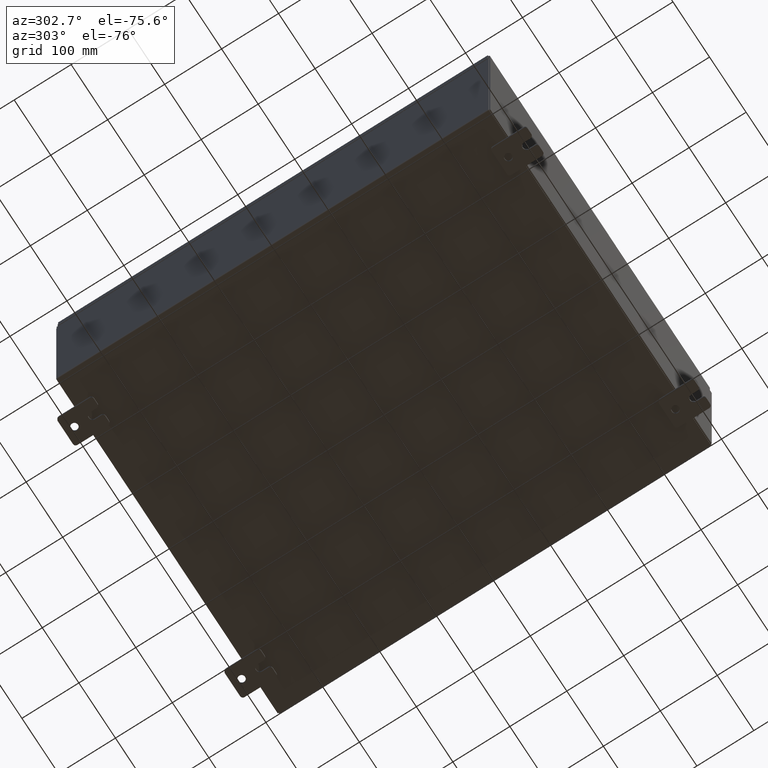
[diagram: clean part render]
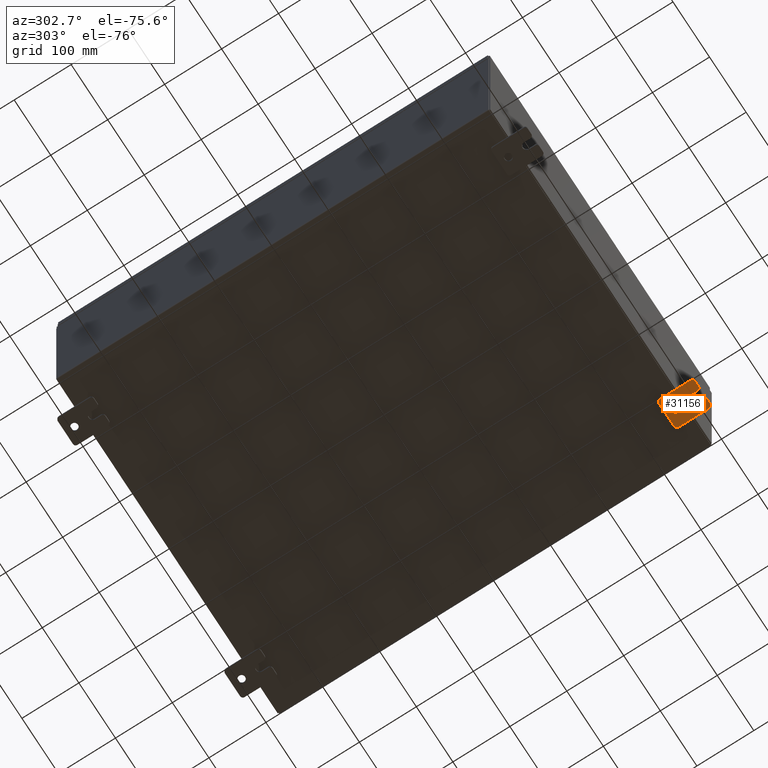
[diagram: same view with one face highlighted and labeled with its STEP entity id]
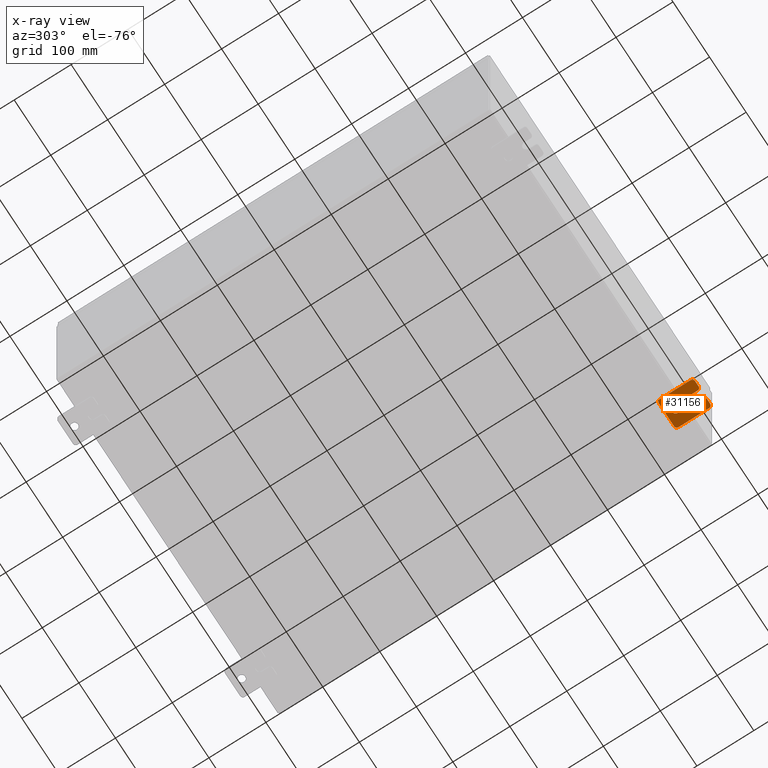
[diagram: x-ray of the same camera — body ghosted, the highlighted face saturated]
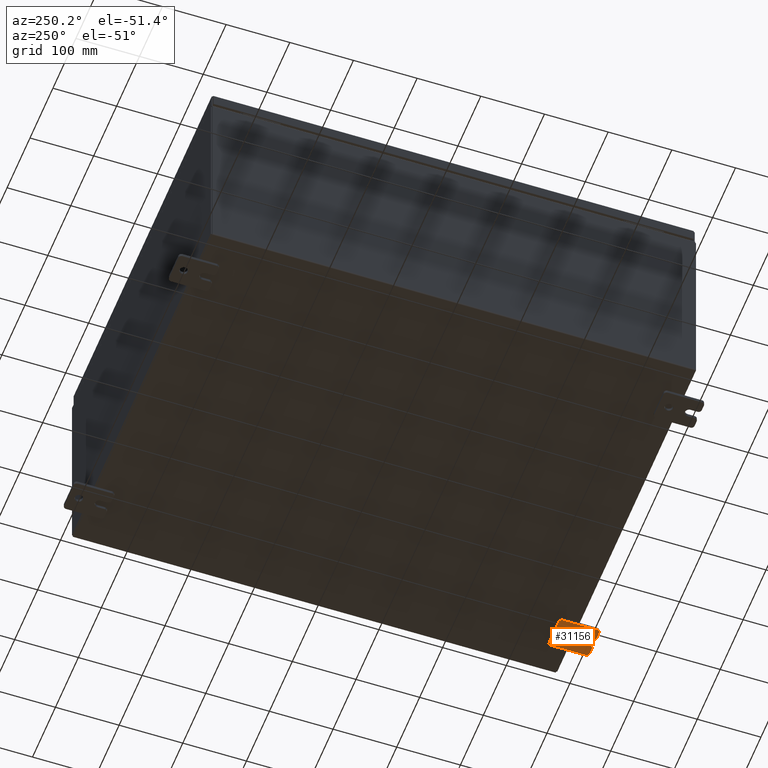
[diagram: same view with one face highlighted and labeled with its STEP entity id]
A machine part, auxiliary view. The second image highlights one B-rep face of the part: STEP entity #31156.
The next image is the same camera in x-ray: the body ghosted, the highlighted face saturated — about 0% of this face is hidden behind the body in this view.
A second angle (auxiliary view) of the same face is appended — the face is thin or edge-on in the first view.
In plain terms, the highlighted planar face has unit normal (0, 0, 1).
Its self-contained STEP definition (entity closure, byte-faithful):
#796 = DIRECTION ( 'NONE',  ( -1.000000000000000000, -0.0000000000000000000, 0.0000000000000000000 ) ) ;
#2778 = CARTESIAN_POINT ( 'NONE',  ( -0.1880000000000010000, 0.6249999999999992200, -0.2499999999999999200 ) ) ;
#4116 = CARTESIAN_POINT ( 'NONE',  ( -0.1880000000000001900, -0.6249999999999992200, -0.2499999999999993900 ) ) ;
#5035 = AXIS2_PLACEMENT_3D ( 'NONE', #34888, #5122, #39874 ) ;
#5122 = DIRECTION ( 'NONE',  ( 1.000000000000000000, 0.0000000000000000000, -0.0000000000000000000 ) ) ;
#5247 = DIRECTION ( 'NONE',  ( -1.000000000000000000, 6.523827964459549700E-016, 5.163192708025532000E-017 ) ) ;
#5863 = EDGE_CURVE ( 'NONE', #24296, #13994, #9798, .T. ) ;
#5956 = EDGE_CURVE ( 'NONE', #61265, #29517, #56196, .T. ) ;
#5964 = ORIENTED_EDGE ( 'NONE', *, *, #50212, .F. ) ;
#6340 = CARTESIAN_POINT ( 'NONE',  ( -0.1879999999999997800, -1.250000000000005600, -1.000000000000006200 ) ) ;
#6374 = CARTESIAN_POINT ( 'NONE',  ( -0.1880000000000010000, 0.6249999999999992200, 0.2499999999999999200 ) ) ;
#6983 = ORIENTED_EDGE ( 'NONE', *, *, #38902, .F. ) ;
#7082 = DIRECTION ( 'NONE',  ( 1.000000000000000000, -0.0000000000000000000, -5.163192708025532000E-017 ) ) ;
#7165 = CARTESIAN_POINT ( 'NONE',  ( -0.1880000000000004700, -1.060000000000002100, 0.2500000000000005000 ) ) ;
#7251 = VECTOR ( 'NONE', #30385, 39.37007874015748100 ) ;
#7382 = AXIS2_PLACEMENT_3D ( 'NONE', #35017, #5247, #39989 ) ;
#8220 = AXIS2_PLACEMENT_3D ( 'NONE', #30566, #796, #35579 ) ;
#8955 = EDGE_CURVE ( 'NONE', #63629, #29517, #38260, .T. ) ;
#9163 = AXIS2_PLACEMENT_3D ( 'NONE', #22955, #57531, #27926 ) ;
#9584 = LINE ( 'NONE', #4116, #60685 ) ;
#9798 = CIRCLE ( 'NONE', #36568, 0.1900000000000011100 ) ;
#10152 = CIRCLE ( 'NONE', #8220, 0.1900000000000011400 ) ;
#12065 = DIRECTION ( 'NONE',  ( 6.556435184794182400E-016, 1.000000000000000000, 0.0000000000000000000 ) ) ;
#12637 = VERTEX_POINT ( 'NONE', #13961 ) ;
#12710 = CARTESIAN_POINT ( 'NONE',  ( -0.1879999999999997800, -1.060000000000004100, -0.8100000000000050500 ) ) ;
#13435 = VECTOR ( 'NONE', #35865, 39.37007874015748100 ) ;
#13961 = CARTESIAN_POINT ( 'NONE',  ( -0.1880000000000001900, -0.6249999999999992200, 0.2500000000000005000 ) ) ;
#13994 = VERTEX_POINT ( 'NONE', #27525 ) ;
#14134 = AXIS2_PLACEMENT_3D ( 'NONE', #36809, #7082, #41786 ) ;
#14372 = EDGE_LOOP ( 'NONE', ( #22746, #22334, #21814, #42608, #52558, #22183, #6983, #21831, #29152, #23228, #45931, #5964, #38667, #57399 ) ) ;
#14698 = EDGE_CURVE ( 'NONE', #34138, #26171, #26755, .T. ) ;
#15420 = CARTESIAN_POINT ( 'NONE',  ( -0.1879999999999997800, 1.249999999999997300, 0.8099999999999935000 ) ) ;
#15505 = LINE ( 'NONE', #6340, #53449 ) ;
#16091 = VECTOR ( 'NONE', #12065, 39.37007874015748100 ) ;
#16392 = EDGE_CURVE ( 'NONE', #54589, #20120, #17795, .T. ) ;
#17445 = CARTESIAN_POINT ( 'NONE',  ( -0.1879999999999997800, -1.060000000000001200, 0.9999999999999988900 ) ) ;
#17639 = EDGE_CURVE ( 'NONE', #54589, #13994, #37185, .T. ) ;
#17795 = CIRCLE ( 'NONE', #9163, 0.1900000000000011100 ) ;
#18883 = LINE ( 'NONE', #25368, #7251 ) ;
#20120 = VERTEX_POINT ( 'NONE', #25864 ) ;
#20486 = VERTEX_POINT ( 'NONE', #23020 ) ;
#21814 = ORIENTED_EDGE ( 'NONE', *, *, #8955, .F. ) ;
#21831 = ORIENTED_EDGE ( 'NONE', *, *, #5863, .T. ) ;
#22183 = ORIENTED_EDGE ( 'NONE', *, *, #40440, .T. ) ;
#22281 = AXIS2_PLACEMENT_3D ( 'NONE', #52663, #22997, #57572 ) ;
#22334 = ORIENTED_EDGE ( 'NONE', *, *, #5956, .T. ) ;
#22619 = CARTESIAN_POINT ( 'NONE',  ( -0.1879999999999997800, 1.249999999999994200, -1.000000000000010400 ) ) ;
#22727 = ORIENTED_EDGE ( 'NONE', *, *, #14698, .T. ) ;
#22746 = ORIENTED_EDGE ( 'NONE', *, *, #26810, .F. ) ;
#22955 = CARTESIAN_POINT ( 'NONE',  ( -0.1879999999999997800, -1.060000000000003400, -0.4400000000000005000 ) ) ;
#22997 = DIRECTION ( 'NONE',  ( -1.000000000000000000, -0.0000000000000000000, 0.0000000000000000000 ) ) ;
#23020 = CARTESIAN_POINT ( 'NONE',  ( -0.1879999999999997800, 1.059999999999993400, -1.000000000000010000 ) ) ;
#23221 = CARTESIAN_POINT ( 'NONE',  ( -0.1879999999999997800, -1.060000000000001600, 0.8099999999999978300 ) ) ;
#23228 = ORIENTED_EDGE ( 'NONE', *, *, #16392, .T. ) ;
#24296 = VERTEX_POINT ( 'NONE', #24952 ) ;
#24382 = DIRECTION ( 'NONE',  ( -1.000000000000000000, -0.0000000000000000000, 0.0000000000000000000 ) ) ;
#24890 = PLANE ( 'NONE',  #5035 ) ;
#24952 = CARTESIAN_POINT ( 'NONE',  ( -0.1879999999999997800, -1.060000000000004500, -1.000000000000006400 ) ) ;
#25368 = CARTESIAN_POINT ( 'NONE',  ( -0.1879999999999997800, -1.250000000000002200, 0.9999999999999992200 ) ) ;
#25864 = CARTESIAN_POINT ( 'NONE',  ( -0.1880000000000004700, -1.060000000000003400, -0.2499999999999994400 ) ) ;
#26153 = DIRECTION ( 'NONE',  ( 1.000000000000000000, -0.0000000000000000000, -5.163192708025532000E-017 ) ) ;
#26171 = VERTEX_POINT ( 'NONE', #6374 ) ;
#26487 = CARTESIAN_POINT ( 'NONE',  ( -0.1879999999999997800, -1.250000000000002200, 0.9999999999999992200 ) ) ;
#26755 = CIRCLE ( 'NONE', #14134, 0.2499999999999999200 ) ;
#26810 = EDGE_CURVE ( 'NONE', #61265, #46815, #18883, .T. ) ;
#27525 = CARTESIAN_POINT ( 'NONE',  ( -0.1879999999999997800, -1.250000000000005300, -0.8100000000000047200 ) ) ;
#27926 = DIRECTION ( 'NONE',  ( 0.0000000000000000000, 0.0000000000000000000, -1.000000000000000000 ) ) ;
#29152 = ORIENTED_EDGE ( 'NONE', *, *, #17639, .F. ) ;
#29517 = VERTEX_POINT ( 'NONE', #17445 ) ;
#30057 = VERTEX_POINT ( 'NONE', #15420 ) ;
#30385 = DIRECTION ( 'NONE',  ( 0.0000000000000000000, -1.639108796198553600E-015, -1.000000000000000000 ) ) ;
#30566 = CARTESIAN_POINT ( 'NONE',  ( -0.1879999999999997800, -1.060000000000002100, 0.4400000000000016700 ) ) ;
#31156 = ADVANCED_FACE ( 'NONE', ( #42647, #54217 ), #24890, .F. ) ;
#31487 = DIRECTION ( 'NONE',  ( 0.0000000000000000000, -1.639108796198553600E-015, -1.000000000000000000 ) ) ;
#31490 = AXIS2_PLACEMENT_3D ( 'NONE', #55793, #26153, #60746 ) ;
#32379 = LINE ( 'NONE', #41750, #16091 ) ;
#32413 = DIRECTION ( 'NONE',  ( 0.0000000000000000000, 0.0000000000000000000, -1.000000000000000000 ) ) ;
#33710 = CARTESIAN_POINT ( 'NONE',  ( -0.1879999999999997800, -1.250000000000002400, 0.8099999999999980500 ) ) ;
#34138 = VERTEX_POINT ( 'NONE', #2778 ) ;
#34310 = CARTESIAN_POINT ( 'NONE',  ( -0.1879999999999997800, 1.059999999999996500, 0.9999999999999953400 ) ) ;
#34888 = CARTESIAN_POINT ( 'NONE',  ( -0.1879999999999997800, 0.0000000000000000000, 0.0000000000000000000 ) ) ;
#35017 = CARTESIAN_POINT ( 'NONE',  ( -0.1880000000000001900, -0.6249999999999992200, 6.829619984160658000E-017 ) ) ;
#35347 = CARTESIAN_POINT ( 'NONE',  ( -0.1879999999999997800, 1.249999999999997600, 0.9999999999999951200 ) ) ;
#35508 = VERTEX_POINT ( 'NONE', #46962 ) ;
#35579 = DIRECTION ( 'NONE',  ( 0.0000000000000000000, 0.0000000000000000000, -1.000000000000000000 ) ) ;
#35815 = VECTOR ( 'NONE', #62193, 39.37007874015748100 ) ;
#35865 = DIRECTION ( 'NONE',  ( 0.0000000000000000000, -1.000000000000000000, 1.639108796198558100E-015 ) ) ;
#36016 = EDGE_CURVE ( 'NONE', #63629, #30057, #47835, .T. ) ;
#36568 = AXIS2_PLACEMENT_3D ( 'NONE', #12710, #45713, #32413 ) ;
#36809 = CARTESIAN_POINT ( 'NONE',  ( -0.1880000000000010000, 0.6249999999999992200, -7.703811342100550500E-020 ) ) ;
#37185 = LINE ( 'NONE', #26487, #41101 ) ;
#38260 = LINE ( 'NONE', #35347, #13435 ) ;
#38340 = EDGE_CURVE ( 'NONE', #26171, #34138, #44196, .T. ) ;
#38667 = ORIENTED_EDGE ( 'NONE', *, *, #57479, .F. ) ;
#38902 = EDGE_CURVE ( 'NONE', #24296, #20486, #15505, .T. ) ;
#39046 = ORIENTED_EDGE ( 'NONE', *, *, #38340, .T. ) ;
#39874 = DIRECTION ( 'NONE',  ( -0.0000000000000000000, 0.0000000000000000000, -1.000000000000000000 ) ) ;
#39989 = DIRECTION ( 'NONE',  ( -6.829619984160660000E-016, -1.000000000000000000, 0.0000000000000000000 ) ) ;
#40440 = EDGE_CURVE ( 'NONE', #52015, #20486, #51026, .T. ) ;
#41101 = VECTOR ( 'NONE', #31487, 39.37007874015748100 ) ;
#41453 = VERTEX_POINT ( 'NONE', #7165 ) ;
#41711 = CARTESIAN_POINT ( 'NONE',  ( -0.1879999999999997800, -1.250000000000003100, 0.4400000000000020000 ) ) ;
#41750 = CARTESIAN_POINT ( 'NONE',  ( -0.1880000000000005800, -1.250000000000003800, 0.2500000000000005000 ) ) ;
#41786 = DIRECTION ( 'NONE',  ( 0.0000000000000000000, 0.0000000000000000000, -1.000000000000000000 ) ) ;
#42608 = ORIENTED_EDGE ( 'NONE', *, *, #36016, .T. ) ;
#42647 = FACE_BOUND ( 'NONE', #46888, .T. ) ;
#44196 = CIRCLE ( 'NONE', #31490, 0.2499999999999999200 ) ;
#45713 = DIRECTION ( 'NONE',  ( -1.000000000000000000, -0.0000000000000000000, 0.0000000000000000000 ) ) ;
#45931 = ORIENTED_EDGE ( 'NONE', *, *, #47660, .F. ) ;
#46815 = VERTEX_POINT ( 'NONE', #41711 ) ;
#46888 = EDGE_LOOP ( 'NONE', ( #22727, #39046 ) ) ;
#46962 = CARTESIAN_POINT ( 'NONE',  ( -0.1880000000000001900, -0.6249999999999992200, -0.2499999999999998600 ) ) ;
#47252 = DIRECTION ( 'NONE',  ( -1.000000000000000000, -0.0000000000000000000, 0.0000000000000000000 ) ) ;
#47660 = EDGE_CURVE ( 'NONE', #35508, #20120, #9584, .T. ) ;
#47835 = CIRCLE ( 'NONE', #22281, 0.1900000000000011100 ) ;
#48359 = DIRECTION ( 'NONE',  ( -6.556435184794182400E-016, -1.000000000000000000, -1.639108796198545600E-016 ) ) ;
#48939 = LINE ( 'NONE', #22619, #35815 ) ;
#50212 = EDGE_CURVE ( 'NONE', #12637, #35508, #62877, .T. ) ;
#50527 = EDGE_CURVE ( 'NONE', #52015, #30057, #48939, .T. ) ;
#50821 = CARTESIAN_POINT ( 'NONE',  ( -0.1879999999999997800, -1.250000000000004700, -0.4400000000000002200 ) ) ;
#51026 = CIRCLE ( 'NONE', #51855, 0.1900000000000011100 ) ;
#51070 = EDGE_CURVE ( 'NONE', #41453, #46815, #10152, .T. ) ;
#51855 = AXIS2_PLACEMENT_3D ( 'NONE', #54009, #24382, #58954 ) ;
#52015 = VERTEX_POINT ( 'NONE', #56913 ) ;
#52558 = ORIENTED_EDGE ( 'NONE', *, *, #50527, .F. ) ;
#52663 = CARTESIAN_POINT ( 'NONE',  ( -0.1879999999999997800, 1.059999999999996300, 0.8099999999999938400 ) ) ;
#53134 = AXIS2_PLACEMENT_3D ( 'NONE', #23221, #47252, #59424 ) ;
#53449 = VECTOR ( 'NONE', #55709, 39.37007874015748100 ) ;
#54009 = CARTESIAN_POINT ( 'NONE',  ( -0.1879999999999997800, 1.059999999999993600, -0.8100000000000089400 ) ) ;
#54217 = FACE_OUTER_BOUND ( 'NONE', #14372, .T. ) ;
#54589 = VERTEX_POINT ( 'NONE', #50821 ) ;
#55709 = DIRECTION ( 'NONE',  ( 0.0000000000000000000, 1.000000000000000000, -1.639108796198558100E-015 ) ) ;
#55793 = CARTESIAN_POINT ( 'NONE',  ( -0.1880000000000010000, 0.6249999999999992200, -7.703811342100550500E-020 ) ) ;
#56196 = CIRCLE ( 'NONE', #53134, 0.1900000000000011100 ) ;
#56913 = CARTESIAN_POINT ( 'NONE',  ( -0.1879999999999997800, 1.249999999999994700, -0.8100000000000092700 ) ) ;
#57399 = ORIENTED_EDGE ( 'NONE', *, *, #51070, .T. ) ;
#57479 = EDGE_CURVE ( 'NONE', #41453, #12637, #32379, .T. ) ;
#57531 = DIRECTION ( 'NONE',  ( -1.000000000000000000, -0.0000000000000000000, 0.0000000000000000000 ) ) ;
#57572 = DIRECTION ( 'NONE',  ( 0.0000000000000000000, 0.0000000000000000000, -1.000000000000000000 ) ) ;
#58954 = DIRECTION ( 'NONE',  ( 0.0000000000000000000, 0.0000000000000000000, -1.000000000000000000 ) ) ;
#59424 = DIRECTION ( 'NONE',  ( 0.0000000000000000000, 7.189073667537492800E-016, -1.000000000000000000 ) ) ;
#60685 = VECTOR ( 'NONE', #48359, 39.37007874015748100 ) ;
#60746 = DIRECTION ( 'NONE',  ( 0.0000000000000000000, 0.0000000000000000000, -1.000000000000000000 ) ) ;
#61265 = VERTEX_POINT ( 'NONE', #33710 ) ;
#62193 = DIRECTION ( 'NONE',  ( 0.0000000000000000000, 1.639108796198553600E-015, 1.000000000000000000 ) ) ;
#62877 = CIRCLE ( 'NONE', #7382, 0.2499999999999999200 ) ;
#63629 = VERTEX_POINT ( 'NONE', #34310 ) ;